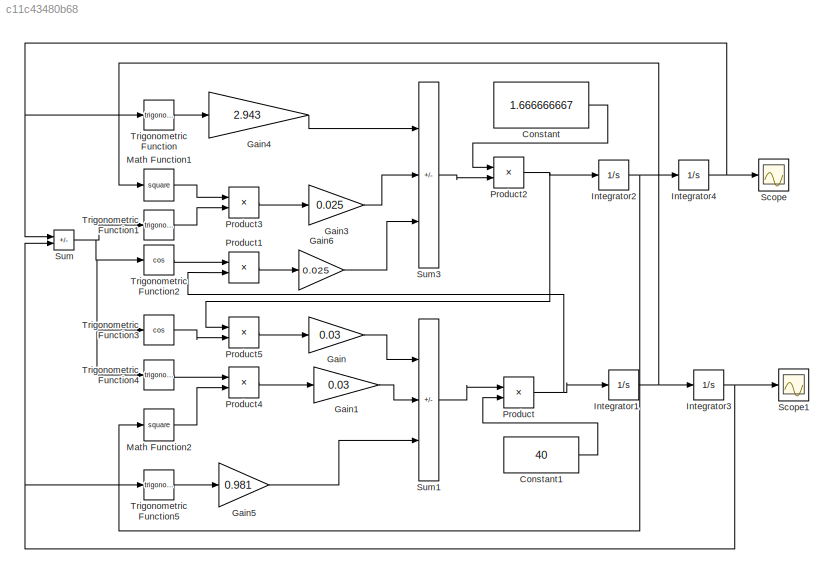
MODEL slx_c11c43480b68
KIND model
CONFIG AbsTol = auto
CONFIG EnableMultiTasking = off
CONFIG FixedStep = auto
CONFIG MaxStep = auto
CONFIG MinStep = auto
CONFIG RelTol = 1e-3
CONFIG SampleTimeConstraint = Unconstrained
CONFIG SolverName = VariableStepAuto
CONFIG StartTime = 0.0
CONFIG StopTime = 10.0
BLOCK [Constant] Constant
  Value = 1.666666667
BLOCK [Constant] Constant1
  Value = 40
BLOCK [Gain] Gain
  Gain = 0.03
BLOCK [Gain] Gain1
  Gain = 0.03
BLOCK [Gain] Gain3
  Gain = 0.025
BLOCK [Gain] Gain4
  Gain = 2.943
BLOCK [Gain] Gain5
  Gain = 0.981
BLOCK [Gain] Gain6
  Gain = 0.025
BLOCK [Integrator] Integrator1
  InitialCondition = 35
BLOCK [Integrator] Integrator2
BLOCK [Integrator] Integrator3
BLOCK [Integrator] Integrator4
BLOCK [Math] Math Function1
  Operator = square
BLOCK [Math] Math Function2
  Operator = square
BLOCK [Product] Product
BLOCK [Product] Product1
BLOCK [Product] Product2
BLOCK [Product] Product3
BLOCK [Product] Product4
BLOCK [Product] Product5
BLOCK [Scope] Scope
  Floating = off
  NumInputPorts = 1
  ScopeSpecificationString = Simulink.scopes.TimeScopeBlockCfg('CurrentConfiguration', extmgr.ConfigurationSet(extmgr.Configuration('Core','General UI',true),extmgr.Configuration('Core','Source UI',true),extmgr.Configuration('Sources','WiredSimulink',true),extmgr.Configuration('Visuals','Time Domain',true,'SerializedDisplays',{struct('MinYLimReal','-0.93746','MaxYLimReal','0.92884','YLabelReal','','MinYLimMag','0.00000','MaxY...<+1450ch>
BLOCK [Scope] Scope1
  Floating = off
  NumInputPorts = 1
  ScopeSpecificationString = Simulink.scopes.TimeScopeBlockCfg('CurrentConfiguration', extmgr.ConfigurationSet(extmgr.Configuration('Core','General UI',true),extmgr.Configuration('Core','Source UI',true),extmgr.Configuration('Sources','WiredSimulink',true,'DataLoggingVariableName','ScopeData1'),extmgr.Configuration('Visuals','Time Domain',true,'SerializedDisplays',{struct('MinYLimReal','-42.0477','MaxYLimReal','378.42929','YL...<+1497ch>
BLOCK [Sum] Sum
  IconShape = rectangular
  Inputs = +-
BLOCK [Sum] Sum1
  IconShape = rectangular
  Inputs = -+-
BLOCK [Sum] Sum3
  IconShape = rectangular
  Inputs = ---
BLOCK [Trigonometry] Trigonometric Function
BLOCK [Trigonometry] Trigonometric Function1
BLOCK [Trigonometry] Trigonometric Function2
  Operator = cos
BLOCK [Trigonometry] Trigonometric Function3
  Operator = cos
BLOCK [Trigonometry] Trigonometric Function4
BLOCK [Trigonometry] Trigonometric Function5
LINE Constant1:1 -> Product:2
LINE Constant:1 -> Product2:1
LINE Gain1:1 -> Sum1:2
LINE Gain3:1 -> Sum3:2
LINE Gain4:1 -> Sum3:1
LINE Gain5:1 -> Sum1:3
LINE Gain6:1 -> Sum3:3
LINE Gain:1 -> Sum1:1
NET Integrator1:1 -> Integrator3:1, Math Function1:1
NET Integrator2:1 -> Integrator4:1, Math Function2:1
NET Integrator3:1 -> Scope1:1, Sum:2, Trigonometric Function5:1
NET Integrator4:1 -> Scope:1, Sum:1, Trigonometric Function:1
LINE Math Function1:1 -> Product3:1
LINE Math Function2:1 -> Product4:2
LINE Product1:1 -> Gain6:1
NET Product2:1 -> Integrator2:1, Product5:1
LINE Product3:1 -> Gain3:1
LINE Product4:1 -> Gain1:1
LINE Product5:1 -> Gain:1
NET Product:1 -> Integrator1:1, Product1:2
LINE Sum1:1 -> Product:1
LINE Sum3:1 -> Product2:2
NET Sum:1 -> Trigonometric Function1:1, Trigonometric Function2:1, Trigonometric Function3:1, Trigonometric Function4:1
LINE Trigonometric Function1:1 -> Product3:2
LINE Trigonometric Function2:1 -> Product1:1
LINE Trigonometric Function3:1 -> Product5:2
LINE Trigonometric Function4:1 -> Product4:1
LINE Trigonometric Function5:1 -> Gain5:1
LINE Trigonometric Function:1 -> Gain4:1
note: NET lines group one-source signal fan-out (src -> all destinations, sorted); 1:1 wires keep LINE
